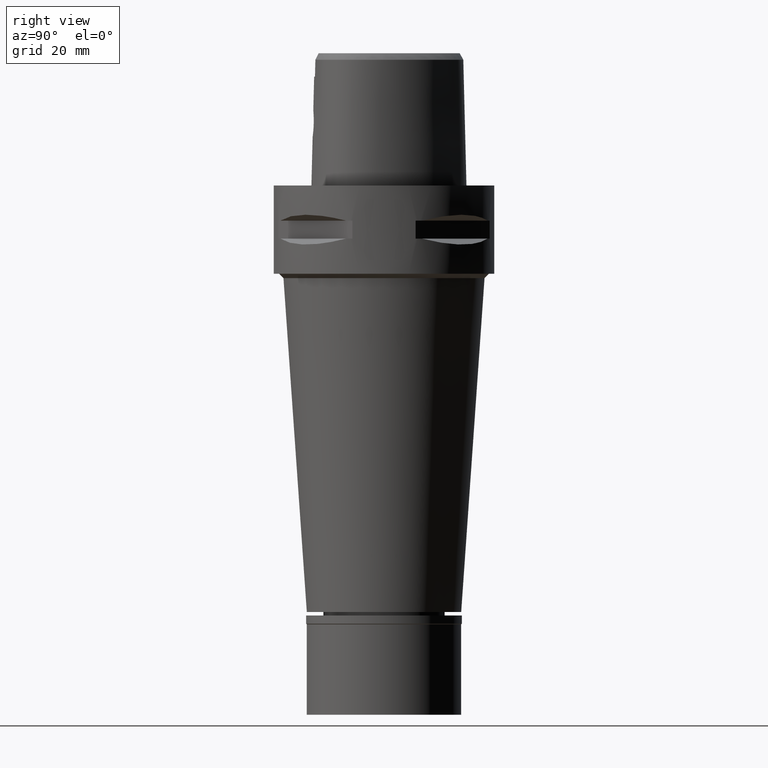
[diagram: clean part render]
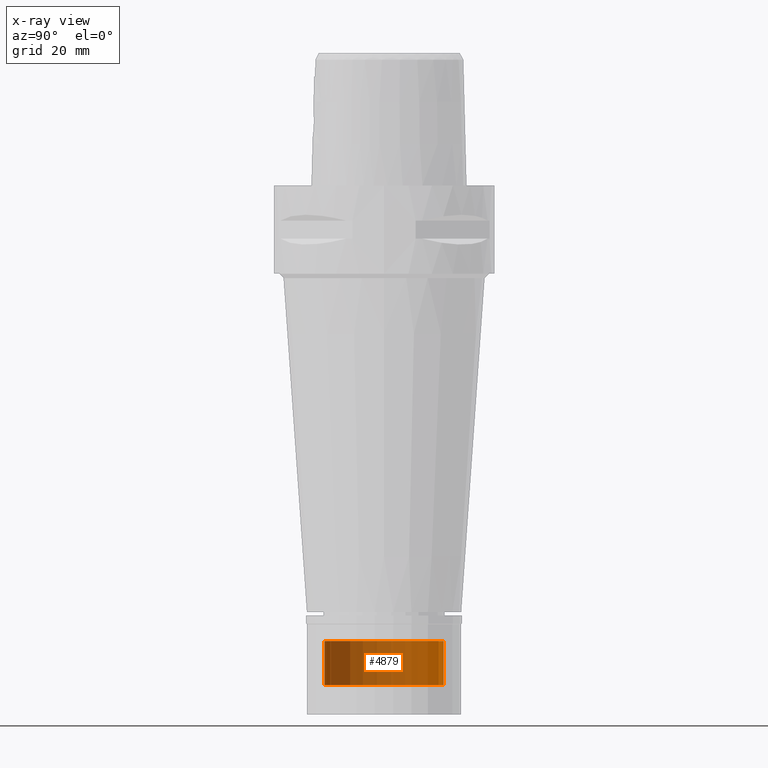
[diagram: x-ray — body ghosted, one internal face saturated and labeled with its STEP entity id]
A machine part, right view, then the same camera in x-ray: the body is ghosted and one INTERNAL B-rep face — a face not visible from any outside direction — is saturated and labeled: STEP entity #4879.
In plain terms, the highlighted cylindrical surface (partial cylindrical patch) has radius 13.5 mm, axis along (0, 0, -1).
Its self-contained STEP definition (entity closure, byte-faithful):
#123 = VERTEX_POINT ( 'NONE', #1049 ) ;
#128 = DIRECTION ( 'NONE',  ( 0.0000000000000000000, 0.0000000000000000000, -1.000000000000000000 ) ) ;
#327 = CARTESIAN_POINT ( 'NONE',  ( 0.0000000000000000000, 13.50000000000000000, -103.2999999999999972 ) ) ;
#433 = CARTESIAN_POINT ( 'NONE',  ( 0.0000000000000000000, 1.294023040318999806E-14, 5.665000000000000036 ) ) ;
#446 = EDGE_CURVE ( 'NONE', #123, #1979, #808, .T. ) ;
#749 = FACE_OUTER_BOUND ( 'NONE', #4625, .T. ) ;
#800 = VECTOR ( 'NONE', #128, 1000.000000000000000 ) ;
#808 = CIRCLE ( 'NONE', #1292, 13.50000000000000000 ) ;
#897 = LINE ( 'NONE', #2511, #800 ) ;
#909 = DIRECTION ( 'NONE',  ( 0.0000000000000000000, 0.0000000000000000000, 1.000000000000000000 ) ) ;
#964 = VERTEX_POINT ( 'NONE', #2748 ) ;
#1049 = CARTESIAN_POINT ( 'NONE',  ( 0.0000000000000000000, 13.50000000000000000, -113.2999999999999972 ) ) ;
#1125 = DIRECTION ( 'NONE',  ( 0.0000000000000000000, -1.000000000000000000, 0.0000000000000000000 ) ) ;
#1129 = CARTESIAN_POINT ( 'NONE',  ( 0.0000000000000000000, 1.294023040318999806E-14, -103.2999999999999972 ) ) ;
#1220 = AXIS2_PLACEMENT_3D ( 'NONE', #1129, #1916, #4548 ) ;
#1292 = AXIS2_PLACEMENT_3D ( 'NONE', #4027, #909, #3306 ) ;
#1392 = ORIENTED_EDGE ( 'NONE', *, *, #4790, .F. ) ;
#1761 = VECTOR ( 'NONE', #2673, 1000.000000000000000 ) ;
#1859 = LINE ( 'NONE', #327, #1761 ) ;
#1891 = EDGE_CURVE ( 'NONE', #964, #3013, #4429, .T. ) ;
#1916 = DIRECTION ( 'NONE',  ( 0.0000000000000000000, 0.0000000000000000000, -1.000000000000000000 ) ) ;
#1979 = VERTEX_POINT ( 'NONE', #3757 ) ;
#2511 = CARTESIAN_POINT ( 'NONE',  ( 0.0000000000000000000, -13.50000000000000000, -103.2999999999999972 ) ) ;
#2673 = DIRECTION ( 'NONE',  ( 0.0000000000000000000, 0.0000000000000000000, -1.000000000000000000 ) ) ;
#2748 = CARTESIAN_POINT ( 'NONE',  ( 0.0000000000000000000, -13.50000000000000000, -103.2999999999999972 ) ) ;
#2757 = ORIENTED_EDGE ( 'NONE', *, *, #3617, .T. ) ;
#3013 = VERTEX_POINT ( 'NONE', #4520 ) ;
#3143 = AXIS2_PLACEMENT_3D ( 'NONE', #433, #4671, #1125 ) ;
#3306 = DIRECTION ( 'NONE',  ( 0.0000000000000000000, 1.000000000000000000, 0.0000000000000000000 ) ) ;
#3617 = EDGE_CURVE ( 'NONE', #3013, #123, #1859, .T. ) ;
#3757 = CARTESIAN_POINT ( 'NONE',  ( 0.0000000000000000000, -13.50000000000000000, -113.2999999999999972 ) ) ;
#3842 = CYLINDRICAL_SURFACE ( 'NONE', #3143, 13.50000000000000000 ) ;
#4027 = CARTESIAN_POINT ( 'NONE',  ( 0.0000000000000000000, 1.294023040318999806E-14, -113.2999999999999972 ) ) ;
#4116 = ORIENTED_EDGE ( 'NONE', *, *, #446, .T. ) ;
#4141 = ORIENTED_EDGE ( 'NONE', *, *, #1891, .T. ) ;
#4429 = CIRCLE ( 'NONE', #1220, 13.50000000000000000 ) ;
#4520 = CARTESIAN_POINT ( 'NONE',  ( 0.0000000000000000000, 13.50000000000000000, -103.2999999999999972 ) ) ;
#4548 = DIRECTION ( 'NONE',  ( 0.0000000000000000000, -1.000000000000000000, 0.0000000000000000000 ) ) ;
#4625 = EDGE_LOOP ( 'NONE', ( #4116, #1392, #4141, #2757 ) ) ;
#4671 = DIRECTION ( 'NONE',  ( 0.0000000000000000000, 0.0000000000000000000, -1.000000000000000000 ) ) ;
#4790 = EDGE_CURVE ( 'NONE', #964, #1979, #897, .T. ) ;
#4879 = ADVANCED_FACE ( 'NONE', ( #749 ), #3842, .T. ) ;